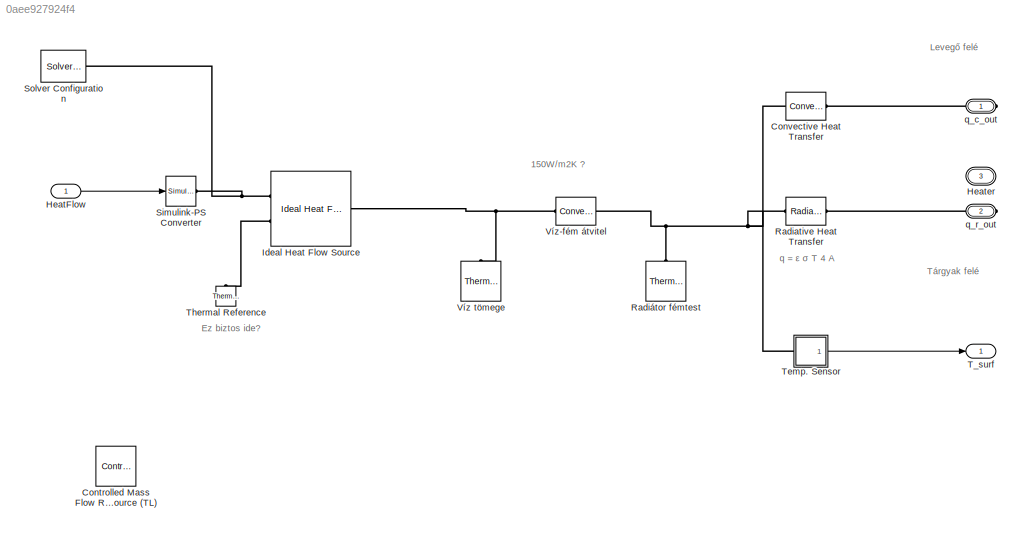
MODEL slx_0aee927924f4
KIND model
CONFIG AbsTol = auto
CONFIG EnableMultiTasking = off
CONFIG FixedStep = auto
CONFIG MaxStep = auto
CONFIG MinStep = auto
CONFIG RelTol = 1e-3
CONFIG SampleTimeConstraint = Unconstrained
CONFIG Solver = VariableStepAuto
CONFIG SolverName = VariableStepAuto
CONFIG StartTime = 0.0
CONFIG StopTime = 10.0
BLOCK [Reference] Controlled Mass Flow Rate Source (TL)  REF=fl_lib/Thermal Liquid/Sources/Controlled Mass Flow
Rate Source (TL)
  Commented = on
  Ports = [0, 0, 0, 0, 0, 2, 1]
  SourceBlock = fl_lib/Thermal Liquid/Sources/Controlled Mass Flow\nRate Source (TL)
  SourceType = Controlled Mass Flow\nRate Source (TL)
BLOCK [Reference] Convective Heat Transfer  REF=fl_lib/Thermal/Thermal Elements/Convective Heat
Transfer
  Ports = [0, 0, 0, 0, 0, 1, 1]
  SourceBlock = fl_lib/Thermal/Thermal Elements/Convective Heat\nTransfer
  SourceType = Convective Heat\nTransfer
BLOCK [Inport] HeatFlow
  IconDisplay = Port number
BLOCK [PMIOPort] Heater
  Port = 3
  Side = Left
  Tag = PMCPort
BLOCK [Reference] Ideal Heat Flow Source  REF=fl_lib/Thermal/Thermal Sources/Ideal Heat Flow
Source
  Ports = [0, 0, 0, 0, 0, 1, 2]
  SourceBlock = fl_lib/Thermal/Thermal Sources/Ideal Heat Flow\nSource
  SourceType = Ideal Heat Flow\nSource
BLOCK [Reference] Radiative Heat Transfer  REF=fl_lib/Thermal/Thermal Elements/Radiative Heat
Transfer
  Ports = [0, 0, 0, 0, 0, 1, 1]
  SourceBlock = fl_lib/Thermal/Thermal Elements/Radiative Heat\nTransfer
  SourceType = Radiative Heat\nTransfer
BLOCK [Reference] Radiátor fémtest  REF=fl_lib/Thermal/Thermal Elements/Thermal Mass
  Ports = [0, 0, 0, 0, 0, 1]
  SourceBlock = fl_lib/Thermal/Thermal Elements/Thermal Mass
  SourceType = Thermal Mass
BLOCK [Reference] Simulink-PS Converter  REF=nesl_utility/Simulink-PS
Converter
  Ports = [1, 0, 0, 0, 0, 0, 1]
  SourceBlock = nesl_utility/Simulink-PS\nConverter
  SourceType = Simulink-PS\nConverter
BLOCK [Reference] Solver Configuration  REF=nesl_utility/Solver
Configuration
  Ports = [0, 0, 0, 0, 0, 0, 1]
  SourceBlock = nesl_utility/Solver\nConfiguration
  SourceType = Solver\nConfiguration
BLOCK [Outport] T_surf
  IconDisplay = Port number
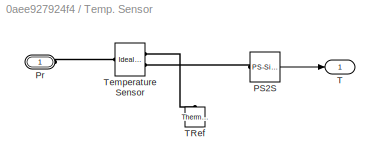
BLOCK [SubSystem] Temp. Sensor
  Ports = [0, 1, 0, 0, 0, 1]
  RequestExecContextInheritance = off
  Variant = off
BLOCK [Reference] Temp. Sensor/PS2S  REF=nesl_utility/PS-Simulink
Converter
  Ports = [0, 1, 0, 0, 0, 1]
  SourceBlock = nesl_utility/PS-Simulink\nConverter
  SourceType = PS-Simulink\nConverter
BLOCK [PMIOPort] Temp. Sensor/Pr
  Port = 1
  Side = Left
BLOCK [Outport] Temp. Sensor/T
  IconDisplay = Port number
BLOCK [Reference] Temp. Sensor/TRef  REF=fl_lib/Thermal/Thermal Elements/Thermal Reference
  Ports = [0, 0, 0, 0, 0, 1]
  SourceBlock = fl_lib/Thermal/Thermal Elements/Thermal Reference
  SourceType = Thermal Reference
BLOCK [Reference] Temp. Sensor/Temperature Sensor  REF=fl_lib/Thermal/Thermal Sensors/Ideal Temperature
Sensor
  Ports = [0, 0, 0, 0, 0, 1, 2]
  SourceBlock = fl_lib/Thermal/Thermal Sensors/Ideal Temperature\nSensor
  SourceType = Ideal Temperature\nSensor
BLOCK [Reference] Thermal Reference  REF=fl_lib/Thermal/Thermal Elements/Thermal Reference
  Ports = [0, 0, 0, 0, 0, 1]
  SourceBlock = fl_lib/Thermal/Thermal Elements/Thermal Reference
  SourceType = Thermal Reference
BLOCK [Reference] Víz tömege  REF=fl_lib/Thermal/Thermal Elements/Thermal Mass
  Ports = [0, 0, 0, 0, 0, 1]
  SourceBlock = fl_lib/Thermal/Thermal Elements/Thermal Mass
  SourceType = Thermal Mass
BLOCK [Reference] Víz-fém átvitel  REF=fl_lib/Thermal/Thermal Elements/Convective Heat
Transfer
  Ports = [0, 0, 0, 0, 0, 1, 1]
  SourceBlock = fl_lib/Thermal/Thermal Elements/Convective Heat\nTransfer
  SourceType = Convective Heat\nTransfer
BLOCK [PMIOPort] q_c_out
  Port = 1
  Side = Right
BLOCK [PMIOPort] q_r_out
  Port = 2
  Side = Right
ANNOTATION (root): 150W/m2K ?
ANNOTATION (root): q = ε σ T 4 A
ANNOTATION (root): Ez biztos ide?
ANNOTATION (root): Levegő felé
ANNOTATION (root): Tárgyak felé
LINE HeatFlow:1 -> Simulink-PS Converter:1
LINE Temp. Sensor/PS2S:1 -> Temp. Sensor/T:1
LINE Temp. Sensor:1 -> T_surf:1
PNET net1: Convective Heat Transfer:LConn1 -- Radiative Heat Transfer:LConn1 -- Radiátor fémtest:LConn1 -- Temp. Sensor:LConn1 -- Víz-fém átvitel:RConn1
PLINE Convective Heat Transfer:RConn1 -- q_c_out:RConn1
PNET net2: Ideal Heat Flow Source:LConn1 -- Víz tömege:LConn1 -- Víz-fém átvitel:LConn1
PNET net3: Ideal Heat Flow Source:RConn1 -- Simulink-PS Converter:RConn1 -- Solver Configuration:RConn1
PLINE Ideal Heat Flow Source:RConn2 -- Thermal Reference:LConn1
PLINE Radiative Heat Transfer:RConn1 -- q_r_out:RConn1
PLINE Temp. Sensor/PS2S:LConn1 -- Temp. Sensor/Temperature Sensor:RConn2
PLINE Temp. Sensor/Pr:RConn1 -- Temp. Sensor/Temperature Sensor:LConn1
PLINE Temp. Sensor/TRef:LConn1 -- Temp. Sensor/Temperature Sensor:RConn1
note: PNET lines group multi-terminal physical nets as a canonical sorted terminal list (undirected conserving connections); 2-terminal nets keep the pairwise PLINE form
